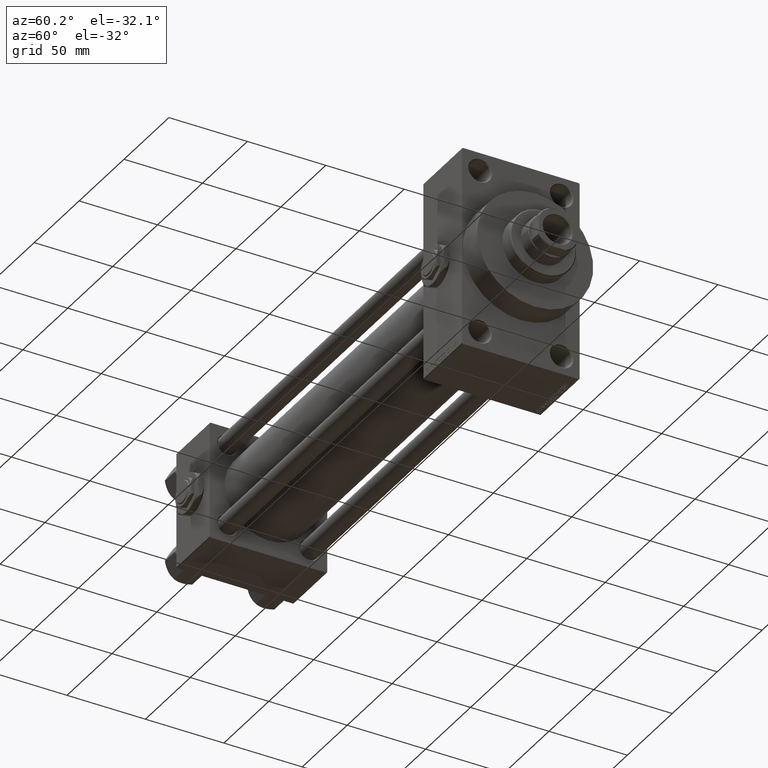
[diagram: clean part render]
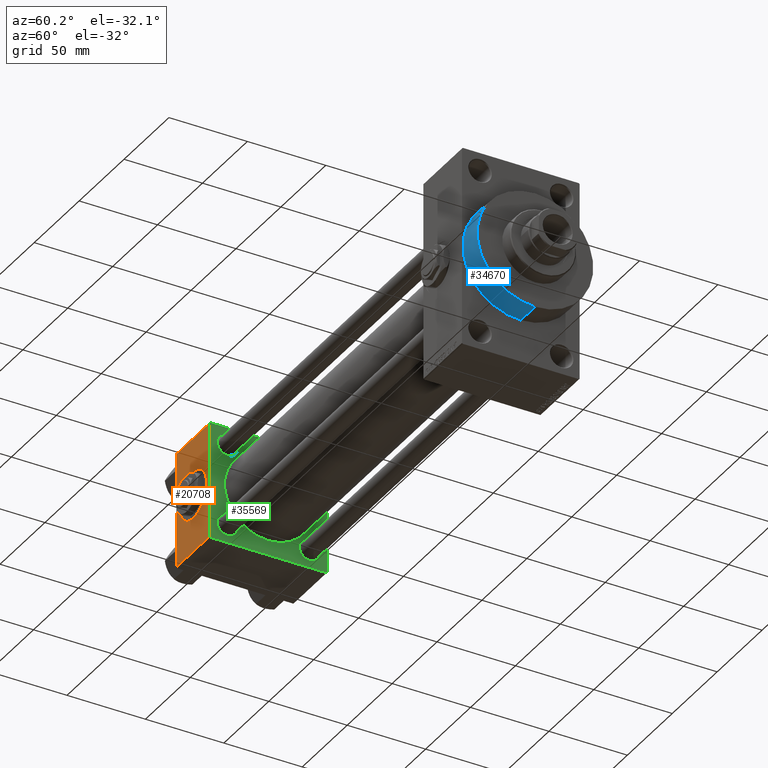
[diagram: same view with three faces highlighted in distinct colors, each labeled with its STEP entity id]
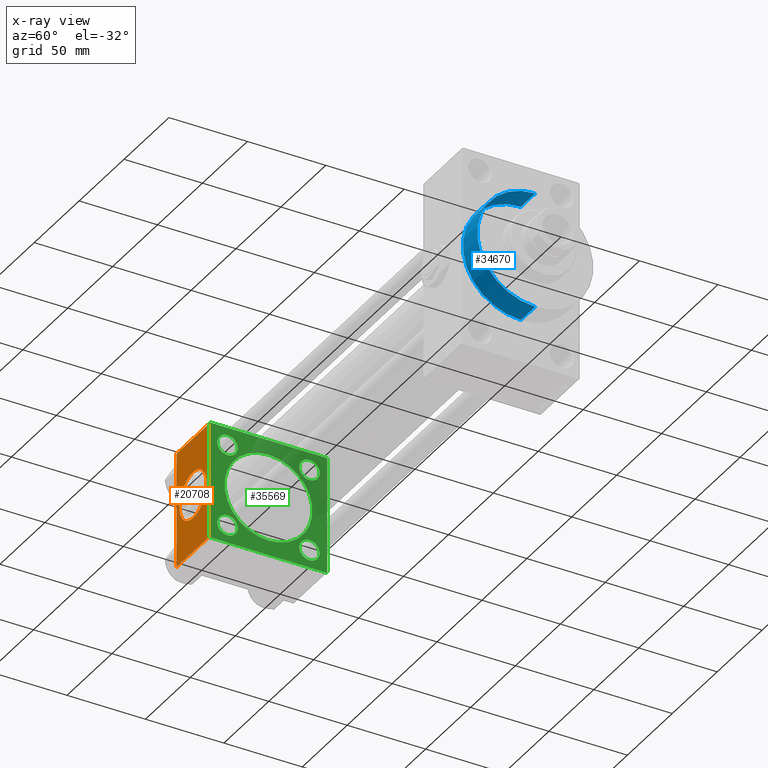
[diagram: x-ray of the same camera — body ghosted, the three highlighted faces saturated]
A machine part, auxiliary view with three faces highlighted in distinct colors.
The next image is the same camera in x-ray (body ghosted, the three faces saturated) — at least one of them is partly hidden behind the body in this view.
Their STEP definitions:

[orange] entity #20708 — the highlighted planar face has unit normal (0, 1, 0).
#477 = DIRECTION ( 'NONE',  ( 0.000000000000000000, 0.000000000000000000, -1.000000000000000000 ) ) ;
#809 = CARTESIAN_POINT ( 'NONE',  ( 37.00000000000000000, -37.50000000000000711, 36.99999999999999289 ) ) ;
#1870 = ORIENTED_EDGE ( 'NONE', *, *, #6750, .F. ) ;
#2210 = CARTESIAN_POINT ( 'NONE',  ( 37.00000000000000000, -37.50000000000000000, -37.00000000000003553 ) ) ;
#5763 = CARTESIAN_POINT ( 'NONE',  ( 0.000000000000000000, -37.50000000000000711, 36.99999999999999289 ) ) ;
#6750 = EDGE_CURVE ( 'NONE', #36500, #41016, #19692, .T. ) ;
#9124 = EDGE_LOOP ( 'NONE', ( #1870, #36726 ) ) ;
#9279 = AXIS2_PLACEMENT_3D ( 'NONE', #21157, #49034, #14898 ) ;
#9334 = VECTOR ( 'NONE', #28564, 1000.000000000000000 ) ;
#10992 = EDGE_CURVE ( 'NONE', #39806, #47450, #34968, .T. ) ;
#12975 = LINE ( 'NONE', #46638, #16975 ) ;
#14442 = EDGE_CURVE ( 'NONE', #41016, #36500, #16430, .T. ) ;
#14898 = DIRECTION ( 'NONE',  ( 0.000000000000000000, 0.000000000000000000, -1.000000000000000000 ) ) ;
#15131 = DIRECTION ( 'NONE',  ( -0.000000000000000000, 1.000000000000000000, 9.251858538542971581E-17 ) ) ;
#16430 = CIRCLE ( 'NONE', #9279, 15.00000000000000178 ) ;
#16975 = VECTOR ( 'NONE', #31948, 1000.000000000000000 ) ;
#17464 = CARTESIAN_POINT ( 'NONE',  ( 37.00000000000000000, -37.50000000000000711, 36.99999999999999289 ) ) ;
#17882 = EDGE_CURVE ( 'NONE', #47450, #27614, #37683, .T. ) ;
#18906 = CARTESIAN_POINT ( 'NONE',  ( 18.50000000000000355, -37.50000000000000711, 14.99999999999999822 ) ) ;
#19692 = CIRCLE ( 'NONE', #42728, 15.00000000000000178 ) ;
#20708 = ADVANCED_FACE ( 'NONE', ( #36588, #25382 ), #30347, .F. ) ;
#21157 = CARTESIAN_POINT ( 'NONE',  ( 18.50000000000000000, -37.50000000000000711, -3.469446951953614978E-15 ) ) ;
#21239 = EDGE_LOOP ( 'NONE', ( #34251, #22467, #31986, #23421 ) ) ;
#22142 = DIRECTION ( 'NONE',  ( 0.000000000000000000, -9.251858538542971581E-17, 1.000000000000000000 ) ) ;
#22467 = ORIENTED_EDGE ( 'NONE', *, *, #37020, .T. ) ;
#23419 = CARTESIAN_POINT ( 'NONE',  ( 18.50000000000000000, -37.50000000000000711, -3.469446951953614978E-15 ) ) ;
#23421 = ORIENTED_EDGE ( 'NONE', *, *, #10992, .T. ) ;
#25382 = FACE_OUTER_BOUND ( 'NONE', #21239, .T. ) ;
#27614 = VERTEX_POINT ( 'NONE', #31602 ) ;
#28564 = DIRECTION ( 'NONE',  ( 0.000000000000000000, 9.251858538542971581E-17, -1.000000000000000000 ) ) ;
#28929 = EDGE_CURVE ( 'NONE', #39806, #32245, #38794, .T. ) ;
#29280 = AXIS2_PLACEMENT_3D ( 'NONE', #42046, #15131, #22142 ) ;
#30347 = PLANE ( 'NONE',  #29280 ) ;
#31602 = CARTESIAN_POINT ( 'NONE',  ( 0.000000000000000000, -37.50000000000000000, -37.00000000000003553 ) ) ;
#31948 = DIRECTION ( 'NONE',  ( 1.000000000000000000, 0.000000000000000000, 0.000000000000000000 ) ) ;
#31986 = ORIENTED_EDGE ( 'NONE', *, *, #28929, .F. ) ;
#32245 = VERTEX_POINT ( 'NONE', #2210 ) ;
#33952 = DIRECTION ( 'NONE',  ( 0.000000000000000000, 9.251858538542971581E-17, -1.000000000000000000 ) ) ;
#33983 = DIRECTION ( 'NONE',  ( -1.000000000000000000, 0.000000000000000000, 0.000000000000000000 ) ) ;
#34251 = ORIENTED_EDGE ( 'NONE', *, *, #17882, .T. ) ;
#34874 = DIRECTION ( 'NONE',  ( 0.000000000000000000, -1.000000000000000000, -8.673617379884036705E-17 ) ) ;
#34968 = LINE ( 'NONE', #809, #43677 ) ;
#36500 = VERTEX_POINT ( 'NONE', #42838 ) ;
#36588 = FACE_BOUND ( 'NONE', #9124, .T. ) ;
#36726 = ORIENTED_EDGE ( 'NONE', *, *, #14442, .F. ) ;
#37020 = EDGE_CURVE ( 'NONE', #27614, #32245, #12975, .T. ) ;
#37683 = LINE ( 'NONE', #41665, #44309 ) ;
#38794 = LINE ( 'NONE', #43241, #9334 ) ;
#39806 = VERTEX_POINT ( 'NONE', #17464 ) ;
#41016 = VERTEX_POINT ( 'NONE', #18906 ) ;
#41665 = CARTESIAN_POINT ( 'NONE',  ( 0.000000000000000000, -37.50000000000000711, 37.49999999999999289 ) ) ;
#42046 = CARTESIAN_POINT ( 'NONE',  ( 37.00000000000000000, -37.50000000000000711, 37.49999999999999289 ) ) ;
#42728 = AXIS2_PLACEMENT_3D ( 'NONE', #23419, #34874, #477 ) ;
#42838 = CARTESIAN_POINT ( 'NONE',  ( 18.50000000000000000, -37.50000000000000711, -15.00000000000000533 ) ) ;
#43241 = CARTESIAN_POINT ( 'NONE',  ( 37.00000000000000000, -37.50000000000000711, 37.49999999999999289 ) ) ;
#43677 = VECTOR ( 'NONE', #33983, 1000.000000000000000 ) ;
#44309 = VECTOR ( 'NONE', #33952, 1000.000000000000000 ) ;
#46638 = CARTESIAN_POINT ( 'NONE',  ( 37.00000000000000000, -37.50000000000000000, -37.00000000000003553 ) ) ;
#47450 = VERTEX_POINT ( 'NONE', #5763 ) ;
#49034 = DIRECTION ( 'NONE',  ( 0.000000000000000000, -1.000000000000000000, -8.673617379884036705E-17 ) ) ;

[blue] entity #34670 — the highlighted cylindrical surface (partial cylindrical patch) has radius 37 mm, axis along (-1, -0, -0).
#22 = ORIENTED_EDGE ( 'NONE', *, *, #39411, .F. ) ;
#288 = FACE_OUTER_BOUND ( 'NONE', #48542, .T. ) ;
#588 = CARTESIAN_POINT ( 'NONE',  ( 333.9999999999999432, 0.000000000000000000, 37.00000000000000000 ) ) ;
#636 = ORIENTED_EDGE ( 'NONE', *, *, #46460, .T. ) ;
#1637 = CARTESIAN_POINT ( 'NONE',  ( 317.9999999999999432, 0.000000000000000000, 37.00000000000000000 ) ) ;
#4274 = DIRECTION ( 'NONE',  ( -1.000000000000000000, -0.000000000000000000, -0.000000000000000000 ) ) ;
#7837 = LINE ( 'NONE', #11589, #32994 ) ;
#7880 = CARTESIAN_POINT ( 'NONE',  ( 333.9999999999999432, 4.531193156845206793E-15, -37.00000000000000000 ) ) ;
#9763 = AXIS2_PLACEMENT_3D ( 'NONE', #26485, #4274, #26242 ) ;
#9855 = DIRECTION ( 'NONE',  ( 1.000000000000000000, 0.000000000000000000, 0.000000000000000000 ) ) ;
#11320 = LINE ( 'NONE', #588, #33403 ) ;
#11589 = CARTESIAN_POINT ( 'NONE',  ( 333.9999999999999432, 4.531193156845206793E-15, -37.00000000000000000 ) ) ;
#12206 = ORIENTED_EDGE ( 'NONE', *, *, #32096, .F. ) ;
#13124 = CIRCLE ( 'NONE', #42564, 37.00000000000000000 ) ;
#13478 = CARTESIAN_POINT ( 'NONE',  ( 333.9999999999999432, 0.000000000000000000, 37.00000000000000000 ) ) ;
#16803 = CIRCLE ( 'NONE', #34329, 37.00000000000000000 ) ;
#17292 = VERTEX_POINT ( 'NONE', #7880 ) ;
#18493 = CYLINDRICAL_SURFACE ( 'NONE', #9763, 37.00000000000000000 ) ;
#18700 = CARTESIAN_POINT ( 'NONE',  ( 333.9999999999999432, 0.000000000000000000, 0.000000000000000000 ) ) ;
#19689 = DIRECTION ( 'NONE',  ( 0.000000000000000000, 0.000000000000000000, -1.000000000000000000 ) ) ;
#22428 = VERTEX_POINT ( 'NONE', #13478 ) ;
#24319 = EDGE_CURVE ( 'NONE', #22428, #45515, #11320, .T. ) ;
#26242 = DIRECTION ( 'NONE',  ( 0.000000000000000000, 0.000000000000000000, 1.000000000000000000 ) ) ;
#26485 = CARTESIAN_POINT ( 'NONE',  ( 333.9999999999999432, 0.000000000000000000, 0.000000000000000000 ) ) ;
#26710 = VERTEX_POINT ( 'NONE', #37282 ) ;
#32096 = EDGE_CURVE ( 'NONE', #22428, #17292, #16803, .T. ) ;
#32994 = VECTOR ( 'NONE', #34512, 1000.000000000000000 ) ;
#33403 = VECTOR ( 'NONE', #45945, 1000.000000000000000 ) ;
#34329 = AXIS2_PLACEMENT_3D ( 'NONE', #18700, #45371, #19689 ) ;
#34512 = DIRECTION ( 'NONE',  ( -1.000000000000000000, -0.000000000000000000, -0.000000000000000000 ) ) ;
#34670 = ADVANCED_FACE ( 'NONE', ( #288 ), #18493, .T. ) ;
#37282 = CARTESIAN_POINT ( 'NONE',  ( 317.9999999999999432, 4.531193156845206793E-15, -37.00000000000000000 ) ) ;
#38718 = ORIENTED_EDGE ( 'NONE', *, *, #24319, .T. ) ;
#39411 = EDGE_CURVE ( 'NONE', #17292, #26710, #7837, .T. ) ;
#42564 = AXIS2_PLACEMENT_3D ( 'NONE', #43988, #9855, #47734 ) ;
#43988 = CARTESIAN_POINT ( 'NONE',  ( 317.9999999999999432, 0.000000000000000000, 0.000000000000000000 ) ) ;
#45371 = DIRECTION ( 'NONE',  ( 1.000000000000000000, 0.000000000000000000, 0.000000000000000000 ) ) ;
#45515 = VERTEX_POINT ( 'NONE', #1637 ) ;
#45945 = DIRECTION ( 'NONE',  ( -1.000000000000000000, -0.000000000000000000, -0.000000000000000000 ) ) ;
#46460 = EDGE_CURVE ( 'NONE', #45515, #26710, #13124, .T. ) ;
#47734 = DIRECTION ( 'NONE',  ( 0.000000000000000000, 0.000000000000000000, -1.000000000000000000 ) ) ;
#48542 = EDGE_LOOP ( 'NONE', ( #22, #12206, #38718, #636 ) ) ;

[green] entity #35569 — the highlighted planar face has unit normal (-1, 0, 0).
#452 = EDGE_CURVE ( 'NONE', #15896, #1670, #40603, .T. ) ;
#600 = CARTESIAN_POINT ( 'NONE',  ( 37.00000000000000000, -26.14999999999999147, -19.64999999999995239 ) ) ;
#797 = LINE ( 'NONE', #20231, #26955 ) ;
#1054 = VERTEX_POINT ( 'NONE', #8750 ) ;
#1084 = DIRECTION ( 'NONE',  ( -1.000000000000000000, 0.000000000000000000, -0.000000000000000000 ) ) ;
#1201 = CARTESIAN_POINT ( 'NONE',  ( 37.00000000000000000, -26.14999999999999147, -32.65000000000006963 ) ) ;
#1611 = CARTESIAN_POINT ( 'NONE',  ( 37.00000000000000000, -37.00000000000002132, -37.50000000000000711 ) ) ;
#1670 = VERTEX_POINT ( 'NONE', #45029 ) ;
#2210 = CARTESIAN_POINT ( 'NONE',  ( 37.00000000000000000, -37.50000000000000000, -37.00000000000003553 ) ) ;
#2417 = EDGE_LOOP ( 'NONE', ( #30489, #40425 ) ) ;
#3124 = CARTESIAN_POINT ( 'NONE',  ( 37.00000000000000000, 26.14999999999999858, -26.15000000000000213 ) ) ;
#3147 = DIRECTION ( 'NONE',  ( -1.000000000000000000, 0.000000000000000000, -0.000000000000000000 ) ) ;
#3421 = CARTESIAN_POINT ( 'NONE',  ( 37.00000000000000000, -26.14999999999999147, 26.15000000000000924 ) ) ;
#3537 = AXIS2_PLACEMENT_3D ( 'NONE', #18286, #37717, #44934 ) ;
#3613 = DIRECTION ( 'NONE',  ( -1.000000000000000000, 0.000000000000000000, -0.000000000000000000 ) ) ;
#3674 = EDGE_CURVE ( 'NONE', #30153, #39012, #16359, .T. ) ;
#3778 = AXIS2_PLACEMENT_3D ( 'NONE', #3421, #18133, #33342 ) ;
#4087 = DIRECTION ( 'NONE',  ( 0.000000000000000000, 0.000000000000000000, 1.000000000000000000 ) ) ;
#4202 = CARTESIAN_POINT ( 'NONE',  ( 37.00000000000000000, 37.49999999999999289, -36.99999999999998579 ) ) ;
#5028 = CIRCLE ( 'NONE', #10615, 28.00000000000000000 ) ;
#6050 = DIRECTION ( 'NONE',  ( 0.000000000000000000, 0.000000000000000000, -1.000000000000000000 ) ) ;
#6863 = VERTEX_POINT ( 'NONE', #1201 ) ;
#7028 = DIRECTION ( 'NONE',  ( -1.000000000000000000, 0.000000000000000000, -0.000000000000000000 ) ) ;
#7998 = ORIENTED_EDGE ( 'NONE', *, *, #15660, .T. ) ;
#8601 = VERTEX_POINT ( 'NONE', #23509 ) ;
#8750 = CARTESIAN_POINT ( 'NONE',  ( 37.00000000000000711, -2.602085213965210642E-15, 28.00000000000000000 ) ) ;
#8761 = LINE ( 'NONE', #35920, #13561 ) ;
#8768 = DIRECTION ( 'NONE',  ( 0.000000000000000000, -0.7071067811865474617, 0.7071067811865474617 ) ) ;
#9059 = CARTESIAN_POINT ( 'NONE',  ( 37.00000000000000000, 37.49999999999999289, 37.50000000000000000 ) ) ;
#9134 = EDGE_LOOP ( 'NONE', ( #14656, #39801 ) ) ;
#9243 = DIRECTION ( 'NONE',  ( -0.000000000000000000, -0.7071067811865474617, -0.7071067811865474617 ) ) ;
#9334 = VECTOR ( 'NONE', #28564, 1000.000000000000000 ) ;
#9691 = EDGE_LOOP ( 'NONE', ( #41876, #21384 ) ) ;
#10215 = DIRECTION ( 'NONE',  ( 0.000000000000000000, -1.000000000000000000, -9.251858538542971581E-17 ) ) ;
#10287 = FACE_BOUND ( 'NONE', #48814, .T. ) ;
#10531 = FACE_BOUND ( 'NONE', #28651, .T. ) ;
#10615 = AXIS2_PLACEMENT_3D ( 'NONE', #33589, #15133, #33349 ) ;
#10801 = VECTOR ( 'NONE', #15899, 1000.000000000000114 ) ;
#10824 = EDGE_CURVE ( 'NONE', #35216, #6863, #32564, .T. ) ;
#11171 = AXIS2_PLACEMENT_3D ( 'NONE', #48176, #26023, #37475 ) ;
#11332 = EDGE_CURVE ( 'NONE', #32245, #12129, #44872, .T. ) ;
#12129 = VERTEX_POINT ( 'NONE', #1611 ) ;
#13198 = EDGE_CURVE ( 'NONE', #6863, #35216, #22386, .T. ) ;
#13561 = VECTOR ( 'NONE', #9243, 1000.000000000000114 ) ;
#13817 = DIRECTION ( 'NONE',  ( 0.000000000000000000, -1.000000000000000000, -9.251858538542972814E-17 ) ) ;
#14656 = ORIENTED_EDGE ( 'NONE', *, *, #13198, .T. ) ;
#14694 = VERTEX_POINT ( 'NONE', #28087 ) ;
#15050 = CARTESIAN_POINT ( 'NONE',  ( 37.00000000000000000, -26.14999999999999147, -26.15000000000000924 ) ) ;
#15133 = DIRECTION ( 'NONE',  ( 1.000000000000000000, -0.000000000000000000, 0.000000000000000000 ) ) ;
#15353 = AXIS2_PLACEMENT_3D ( 'NONE', #48401, #7028, #40679 ) ;
#15660 = EDGE_CURVE ( 'NONE', #8601, #36741, #45108, .T. ) ;
#15896 = VERTEX_POINT ( 'NONE', #45206 ) ;
#15899 = DIRECTION ( 'NONE',  ( -0.000000000000000000, 0.7071067811865474617, 0.7071067811865474617 ) ) ;
#16329 = CARTESIAN_POINT ( 'NONE',  ( 37.00000000000000000, 26.14999999999999858, 19.64999999999988489 ) ) ;
#16359 = CIRCLE ( 'NONE', #19546, 6.500000000000113687 ) ;
#16775 = CIRCLE ( 'NONE', #27155, 6.500000000000113687 ) ;
#17464 = CARTESIAN_POINT ( 'NONE',  ( 37.00000000000000000, -37.50000000000000711, 36.99999999999999289 ) ) ;
#18133 = DIRECTION ( 'NONE',  ( -1.000000000000000000, 0.000000000000000000, -0.000000000000000000 ) ) ;
#18150 = ORIENTED_EDGE ( 'NONE', *, *, #21383, .T. ) ;
#18286 = CARTESIAN_POINT ( 'NONE',  ( 37.00000000000000711, -2.602085213965210642E-15, 0.000000000000000000 ) ) ;
#18302 = DIRECTION ( 'NONE',  ( -1.000000000000000000, 0.000000000000000000, -0.000000000000000000 ) ) ;
#18325 = DIRECTION ( 'NONE',  ( 0.000000000000000000, 0.000000000000000000, 1.000000000000000000 ) ) ;
#18600 = EDGE_LOOP ( 'NONE', ( #27075, #46892, #19237, #18150, #19382, #33738, #30175, #25862 ) ) ;
#19237 = ORIENTED_EDGE ( 'NONE', *, *, #39493, .F. ) ;
#19382 = ORIENTED_EDGE ( 'NONE', *, *, #452, .T. ) ;
#19546 = AXIS2_PLACEMENT_3D ( 'NONE', #35999, #28281, #39484 ) ;
#19881 = EDGE_CURVE ( 'NONE', #36741, #8601, #49121, .T. ) ;
#20231 = CARTESIAN_POINT ( 'NONE',  ( 37.00000000000000000, 36.99999999999999289, 37.50000000000000000 ) ) ;
#21383 = EDGE_CURVE ( 'NONE', #14694, #15896, #797, .T. ) ;
#21384 = ORIENTED_EDGE ( 'NONE', *, *, #46626, .T. ) ;
#21719 = DIRECTION ( 'NONE',  ( 0.000000000000000000, 0.7071067811865524577, -0.7071067811865426878 ) ) ;
#22386 = CIRCLE ( 'NONE', #38314, 6.500000000000057732 ) ;
#22638 = CARTESIAN_POINT ( 'NONE',  ( 37.00000000000000000, 26.14999999999999858, -32.65000000000011937 ) ) ;
#22656 = VERTEX_POINT ( 'NONE', #46110 ) ;
#23410 = CARTESIAN_POINT ( 'NONE',  ( 37.00000000000000000, -26.14999999999999147, -26.15000000000000924 ) ) ;
#23445 = VECTOR ( 'NONE', #6050, 1000.000000000000000 ) ;
#23493 = CARTESIAN_POINT ( 'NONE',  ( 37.00000000000000711, 8.269258236473784371E-16, -28.00000000000000000 ) ) ;
#23509 = CARTESIAN_POINT ( 'NONE',  ( 37.00000000000000000, -26.14999999999999147, 32.65000000000007674 ) ) ;
#23646 = AXIS2_PLACEMENT_3D ( 'NONE', #25833, #3147, #33794 ) ;
#23696 = CARTESIAN_POINT ( 'NONE',  ( 37.00000000000000000, 26.14999999999999858, 32.65000000000012648 ) ) ;
#23826 = AXIS2_PLACEMENT_3D ( 'NONE', #23410, #38844, #46070 ) ;
#24528 = DIRECTION ( 'NONE',  ( 0.000000000000000000, 0.000000000000000000, 1.000000000000000000 ) ) ;
#25140 = VECTOR ( 'NONE', #10215, 1000.000000000000000 ) ;
#25833 = CARTESIAN_POINT ( 'NONE',  ( 37.00000000000000000, -26.14999999999999147, 26.15000000000000924 ) ) ;
#25862 = ORIENTED_EDGE ( 'NONE', *, *, #11332, .T. ) ;
#25958 = CARTESIAN_POINT ( 'NONE',  ( 37.00000000000000000, -37.00000000000002132, -37.50000000000000711 ) ) ;
#25994 = FACE_OUTER_BOUND ( 'NONE', #18600, .T. ) ;
#26023 = DIRECTION ( 'NONE',  ( -1.000000000000000000, 0.000000000000000000, -0.000000000000000000 ) ) ;
#26937 = EDGE_CURVE ( 'NONE', #41966, #37982, #39826, .T. ) ;
#26955 = VECTOR ( 'NONE', #8768, 1000.000000000000114 ) ;
#27075 = ORIENTED_EDGE ( 'NONE', *, *, #45750, .F. ) ;
#27155 = AXIS2_PLACEMENT_3D ( 'NONE', #27780, #1084, #24528 ) ;
#27593 = CARTESIAN_POINT ( 'NONE',  ( 37.00000000000000000, -26.14999999999999147, 19.64999999999994529 ) ) ;
#27780 = CARTESIAN_POINT ( 'NONE',  ( 37.00000000000000000, 26.14999999999999858, 26.15000000000000213 ) ) ;
#28087 = CARTESIAN_POINT ( 'NONE',  ( 37.00000000000000000, 37.49999999999999289, 37.00000000000000000 ) ) ;
#28281 = DIRECTION ( 'NONE',  ( -1.000000000000000000, 0.000000000000000000, -0.000000000000000000 ) ) ;
#28450 = ORIENTED_EDGE ( 'NONE', *, *, #30910, .T. ) ;
#28564 = DIRECTION ( 'NONE',  ( 0.000000000000000000, 9.251858538542971581E-17, -1.000000000000000000 ) ) ;
#28651 = EDGE_LOOP ( 'NONE', ( #46136, #28450 ) ) ;
#28755 = LINE ( 'NONE', #9059, #23445 ) ;
#28929 = EDGE_CURVE ( 'NONE', #39806, #32245, #38794, .T. ) ;
#29048 = CIRCLE ( 'NONE', #41788, 6.500000000000113687 ) ;
#29229 = FACE_BOUND ( 'NONE', #9134, .T. ) ;
#29569 = VERTEX_POINT ( 'NONE', #23493 ) ;
#30153 = VERTEX_POINT ( 'NONE', #22638 ) ;
#30175 = ORIENTED_EDGE ( 'NONE', *, *, #28929, .T. ) ;
#30489 = ORIENTED_EDGE ( 'NONE', *, *, #36582, .F. ) ;
#30910 = EDGE_CURVE ( 'NONE', #37982, #41966, #16775, .T. ) ;
#31144 = EDGE_CURVE ( 'NONE', #1670, #39806, #8761, .T. ) ;
#32245 = VERTEX_POINT ( 'NONE', #2210 ) ;
#32564 = CIRCLE ( 'NONE', #23826, 6.500000000000057732 ) ;
#33342 = DIRECTION ( 'NONE',  ( 0.000000000000000000, 0.000000000000000000, 1.000000000000000000 ) ) ;
#33349 = DIRECTION ( 'NONE',  ( 0.000000000000000000, 0.000000000000000000, 1.000000000000000000 ) ) ;
#33589 = CARTESIAN_POINT ( 'NONE',  ( 37.00000000000000711, -2.602085213965210642E-15, 0.000000000000000000 ) ) ;
#33738 = ORIENTED_EDGE ( 'NONE', *, *, #31144, .T. ) ;
#33794 = DIRECTION ( 'NONE',  ( 0.000000000000000000, 0.000000000000000000, 1.000000000000000000 ) ) ;
#34717 = VECTOR ( 'NONE', #13817, 1000.000000000000000 ) ;
#35216 = VERTEX_POINT ( 'NONE', #600 ) ;
#35569 = ADVANCED_FACE ( 'NONE', ( #29229, #44416, #10287, #10531, #37198, #25994 ), #41173, .F. ) ;
#35920 = CARTESIAN_POINT ( 'NONE',  ( 37.00000000000000000, -37.50000000000000711, 36.99999999999999289 ) ) ;
#35999 = CARTESIAN_POINT ( 'NONE',  ( 37.00000000000000000, 26.14999999999999858, -26.15000000000000213 ) ) ;
#36339 = CARTESIAN_POINT ( 'NONE',  ( 37.00000000000000000, 26.14999999999999858, -19.64999999999988844 ) ) ;
#36582 = EDGE_CURVE ( 'NONE', #1054, #29569, #5028, .T. ) ;
#36741 = VERTEX_POINT ( 'NONE', #27593 ) ;
#37008 = CARTESIAN_POINT ( 'NONE',  ( 37.00000000000000000, 37.49999999999999289, -37.50000000000000000 ) ) ;
#37198 = FACE_BOUND ( 'NONE', #2417, .T. ) ;
#37332 = VECTOR ( 'NONE', #21719, 1000.000000000000000 ) ;
#37475 = DIRECTION ( 'NONE',  ( 0.000000000000000000, 0.000000000000000000, 1.000000000000000000 ) ) ;
#37717 = DIRECTION ( 'NONE',  ( 1.000000000000000000, -0.000000000000000000, 0.000000000000000000 ) ) ;
#37982 = VERTEX_POINT ( 'NONE', #23696 ) ;
#38314 = AXIS2_PLACEMENT_3D ( 'NONE', #15050, #18302, #4087 ) ;
#38794 = LINE ( 'NONE', #43241, #9334 ) ;
#38844 = DIRECTION ( 'NONE',  ( -1.000000000000000000, 0.000000000000000000, -0.000000000000000000 ) ) ;
#38952 = EDGE_CURVE ( 'NONE', #29569, #1054, #46499, .T. ) ;
#39012 = VERTEX_POINT ( 'NONE', #36339 ) ;
#39078 = LINE ( 'NONE', #4202, #10801 ) ;
#39484 = DIRECTION ( 'NONE',  ( 0.000000000000000000, 0.000000000000000000, 1.000000000000000000 ) ) ;
#39493 = EDGE_CURVE ( 'NONE', #14694, #46477, #28755, .T. ) ;
#39555 = ORIENTED_EDGE ( 'NONE', *, *, #19881, .T. ) ;
#39801 = ORIENTED_EDGE ( 'NONE', *, *, #10824, .T. ) ;
#39806 = VERTEX_POINT ( 'NONE', #17464 ) ;
#39826 = CIRCLE ( 'NONE', #11171, 6.500000000000113687 ) ;
#40425 = ORIENTED_EDGE ( 'NONE', *, *, #38952, .F. ) ;
#40603 = LINE ( 'NONE', #48810, #25140 ) ;
#40679 = DIRECTION ( 'NONE',  ( -0.000000000000000000, 0.000000000000000000, 1.000000000000000000 ) ) ;
#41173 = PLANE ( 'NONE',  #15353 ) ;
#41788 = AXIS2_PLACEMENT_3D ( 'NONE', #3124, #3613, #18325 ) ;
#41876 = ORIENTED_EDGE ( 'NONE', *, *, #3674, .T. ) ;
#41966 = VERTEX_POINT ( 'NONE', #16329 ) ;
#43241 = CARTESIAN_POINT ( 'NONE',  ( 37.00000000000000000, -37.50000000000000711, 37.49999999999999289 ) ) ;
#44235 = CARTESIAN_POINT ( 'NONE',  ( 37.00000000000000000, 37.49999999999999289, -36.99999999999998579 ) ) ;
#44416 = FACE_BOUND ( 'NONE', #9691, .T. ) ;
#44872 = LINE ( 'NONE', #25958, #37332 ) ;
#44934 = DIRECTION ( 'NONE',  ( 0.000000000000000000, 0.000000000000000000, 1.000000000000000000 ) ) ;
#45029 = CARTESIAN_POINT ( 'NONE',  ( 37.00000000000000000, -37.00000000000000711, 37.49999999999999289 ) ) ;
#45108 = CIRCLE ( 'NONE', #23646, 6.500000000000064837 ) ;
#45206 = CARTESIAN_POINT ( 'NONE',  ( 37.00000000000000000, 36.99999999999999289, 37.50000000000000000 ) ) ;
#45750 = EDGE_CURVE ( 'NONE', #22656, #12129, #47972, .T. ) ;
#46070 = DIRECTION ( 'NONE',  ( 0.000000000000000000, 0.000000000000000000, 1.000000000000000000 ) ) ;
#46110 = CARTESIAN_POINT ( 'NONE',  ( 37.00000000000000000, 36.99999999999997868, -37.50000000000000000 ) ) ;
#46136 = ORIENTED_EDGE ( 'NONE', *, *, #26937, .T. ) ;
#46477 = VERTEX_POINT ( 'NONE', #44235 ) ;
#46499 = CIRCLE ( 'NONE', #3537, 28.00000000000000000 ) ;
#46626 = EDGE_CURVE ( 'NONE', #39012, #30153, #29048, .T. ) ;
#46892 = ORIENTED_EDGE ( 'NONE', *, *, #48759, .T. ) ;
#47972 = LINE ( 'NONE', #37008, #34717 ) ;
#48176 = CARTESIAN_POINT ( 'NONE',  ( 37.00000000000000000, 26.14999999999999858, 26.15000000000000213 ) ) ;
#48401 = CARTESIAN_POINT ( 'NONE',  ( 37.00000000000000000, 0.000000000000000000, 0.000000000000000000 ) ) ;
#48759 = EDGE_CURVE ( 'NONE', #22656, #46477, #39078, .T. ) ;
#48810 = CARTESIAN_POINT ( 'NONE',  ( 37.00000000000000000, 37.49999999999999289, 37.50000000000000000 ) ) ;
#48814 = EDGE_LOOP ( 'NONE', ( #39555, #7998 ) ) ;
#49121 = CIRCLE ( 'NONE', #3778, 6.500000000000064837 ) ;